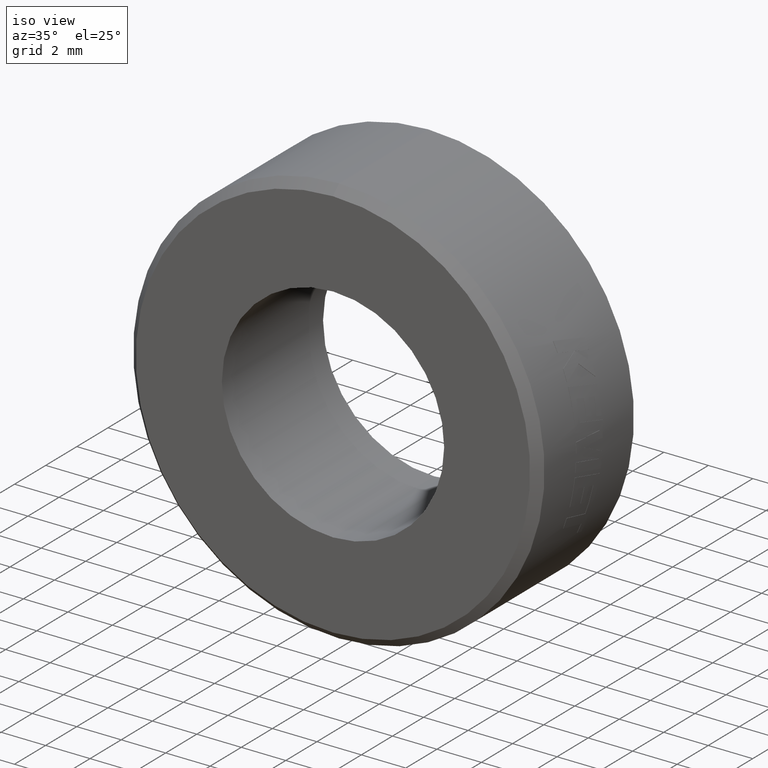
[diagram: clean part render]
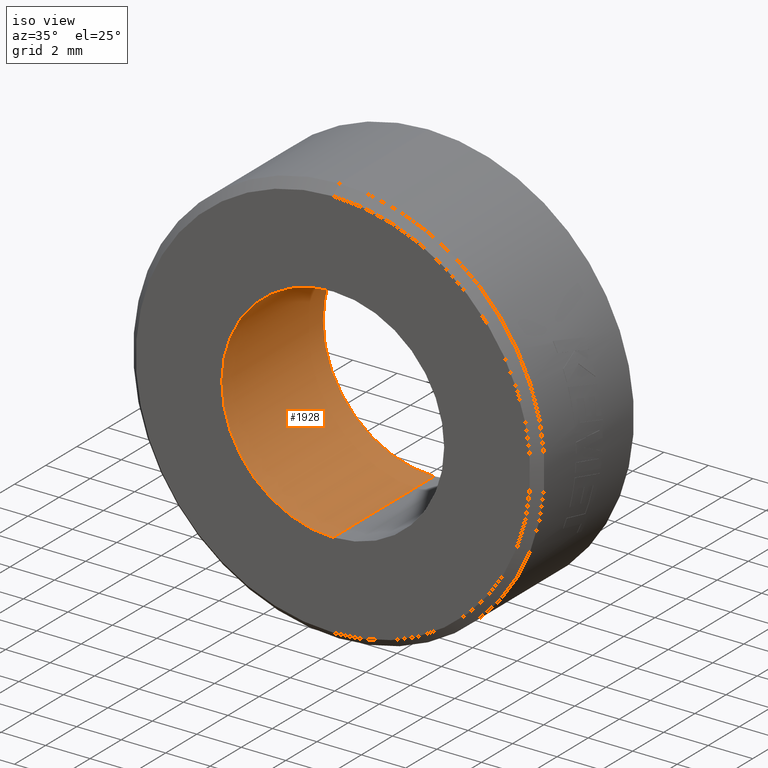
[diagram: same view with one face highlighted and labeled with its STEP entity id]
A machine part, iso view. The second image highlights one B-rep face of the part: STEP entity #1928.
In plain terms, the highlighted cylindrical surface (partial cylindrical patch) has radius 5 mm, axis along (0, 1, 0).
Its self-contained STEP definition (entity closure, byte-faithful):
#71 = CARTESIAN_POINT ( 'NONE',  ( 0.000000000000000000, 3.250000000000000000, 0.000000000000000000 ) ) ;
#102 = CARTESIAN_POINT ( 'NONE',  ( 0.000000000000000000, -3.250000000000000000, 0.000000000000000000 ) ) ;
#112 = DIRECTION ( 'NONE',  ( 0.000000000000000000, 1.000000000000000000, 0.000000000000000000 ) ) ;
#141 = VECTOR ( 'NONE', #1062, 1000.000000000000000 ) ;
#388 = FACE_OUTER_BOUND ( 'NONE', #2041, .T. ) ;
#400 = VERTEX_POINT ( 'NONE', #2401 ) ;
#631 = DIRECTION ( 'NONE',  ( 0.000000000000000000, 0.000000000000000000, 1.000000000000000000 ) ) ;
#658 = DIRECTION ( 'NONE',  ( 0.000000000000000000, 0.000000000000000000, 1.000000000000000000 ) ) ;
#778 = DIRECTION ( 'NONE',  ( 0.000000000000000000, 0.000000000000000000, 1.000000000000000000 ) ) ;
#791 = EDGE_CURVE ( 'NONE', #400, #1831, #857, .T. ) ;
#829 = CARTESIAN_POINT ( 'NONE',  ( 6.123233995736765296E-16, 3.250000000000000000, -5.000000000000000000 ) ) ;
#857 = LINE ( 'NONE', #1803, #141 ) ;
#909 = AXIS2_PLACEMENT_3D ( 'NONE', #71, #2333, #658 ) ;
#958 = CARTESIAN_POINT ( 'NONE',  ( 0.000000000000000000, 3.250000000000000000, 5.000000000000000000 ) ) ;
#1047 = EDGE_CURVE ( 'NONE', #2220, #400, #1207, .T. ) ;
#1062 = DIRECTION ( 'NONE',  ( 0.000000000000000000, 1.000000000000000000, 0.000000000000000000 ) ) ;
#1114 = VERTEX_POINT ( 'NONE', #829 ) ;
#1173 = CARTESIAN_POINT ( 'NONE',  ( 0.000000000000000000, -3.250000000000000000, 0.000000000000000000 ) ) ;
#1207 = CIRCLE ( 'NONE', #1439, 5.000000000000000000 ) ;
#1301 = ORIENTED_EDGE ( 'NONE', *, *, #791, .F. ) ;
#1308 = EDGE_CURVE ( 'NONE', #1114, #1831, #1454, .T. ) ;
#1359 = DIRECTION ( 'NONE',  ( 0.000000000000000000, 1.000000000000000000, 0.000000000000000000 ) ) ;
#1439 = AXIS2_PLACEMENT_3D ( 'NONE', #1173, #1934, #778 ) ;
#1454 = CIRCLE ( 'NONE', #909, 5.000000000000000000 ) ;
#1532 = ORIENTED_EDGE ( 'NONE', *, *, #1047, .F. ) ;
#1707 = CARTESIAN_POINT ( 'NONE',  ( 6.123233995736765296E-16, -3.250000000000000000, -5.000000000000000000 ) ) ;
#1751 = ORIENTED_EDGE ( 'NONE', *, *, #1308, .T. ) ;
#1791 = VECTOR ( 'NONE', #1359, 1000.000000000000000 ) ;
#1803 = CARTESIAN_POINT ( 'NONE',  ( 0.000000000000000000, -3.250000000000000000, 5.000000000000000000 ) ) ;
#1831 = VERTEX_POINT ( 'NONE', #958 ) ;
#1928 = ADVANCED_FACE ( 'NONE', ( #388 ), #2317, .F. ) ;
#1934 = DIRECTION ( 'NONE',  ( 0.000000000000000000, 1.000000000000000000, 0.000000000000000000 ) ) ;
#2036 = AXIS2_PLACEMENT_3D ( 'NONE', #102, #112, #631 ) ;
#2039 = ORIENTED_EDGE ( 'NONE', *, *, #2302, .T. ) ;
#2041 = EDGE_LOOP ( 'NONE', ( #1532, #2039, #1751, #1301 ) ) ;
#2128 = LINE ( 'NONE', #1707, #1791 ) ;
#2220 = VERTEX_POINT ( 'NONE', #2236 ) ;
#2236 = CARTESIAN_POINT ( 'NONE',  ( 6.123233995736765296E-16, -3.250000000000000000, -5.000000000000000000 ) ) ;
#2302 = EDGE_CURVE ( 'NONE', #2220, #1114, #2128, .T. ) ;
#2317 = CYLINDRICAL_SURFACE ( 'NONE', #2036, 5.000000000000000000 ) ;
#2333 = DIRECTION ( 'NONE',  ( 0.000000000000000000, 1.000000000000000000, 0.000000000000000000 ) ) ;
#2401 = CARTESIAN_POINT ( 'NONE',  ( 0.000000000000000000, -3.250000000000000000, 5.000000000000000000 ) ) ;